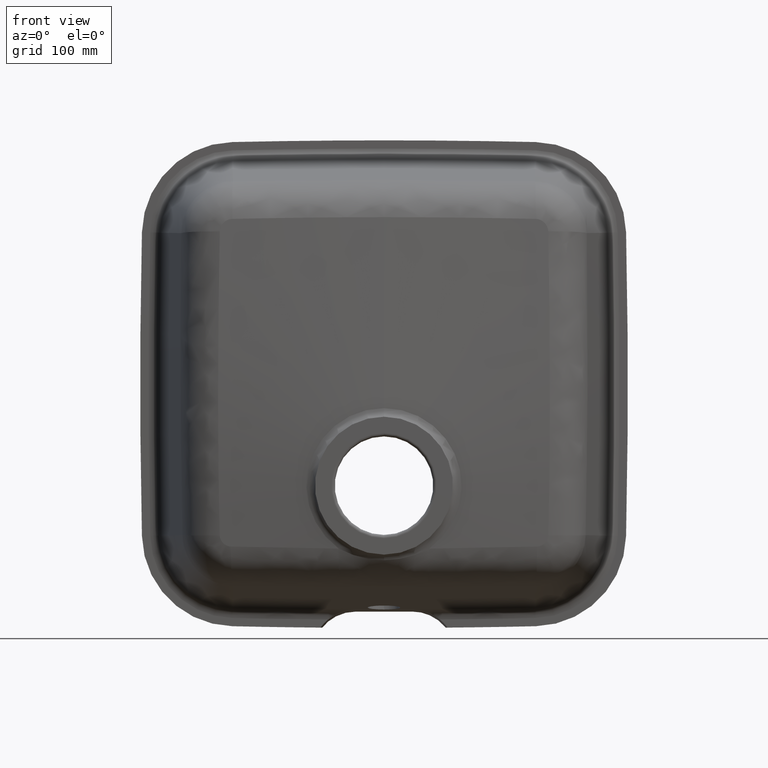
[diagram: clean part render]
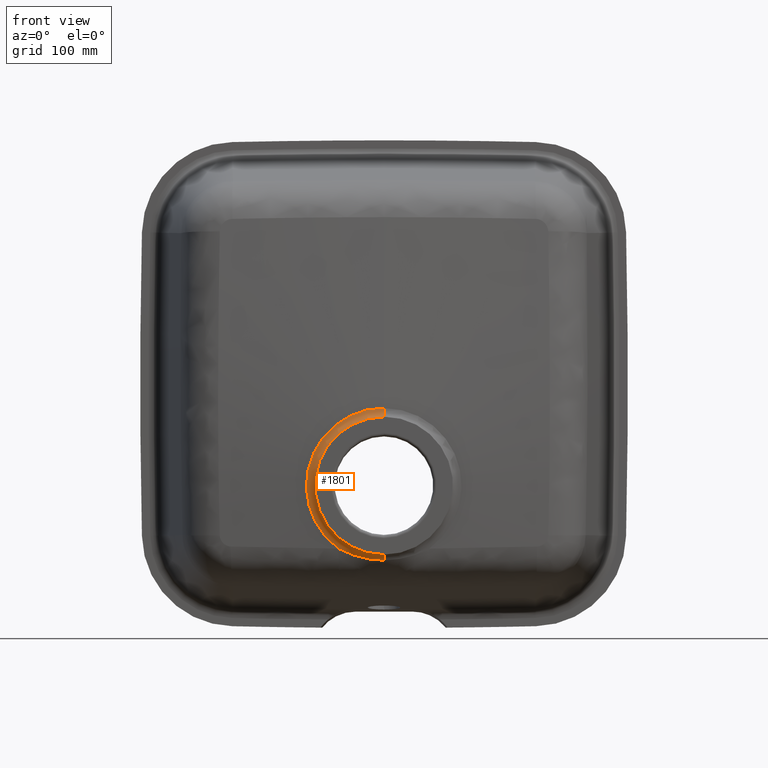
[diagram: same view with one face highlighted and labeled with its STEP entity id]
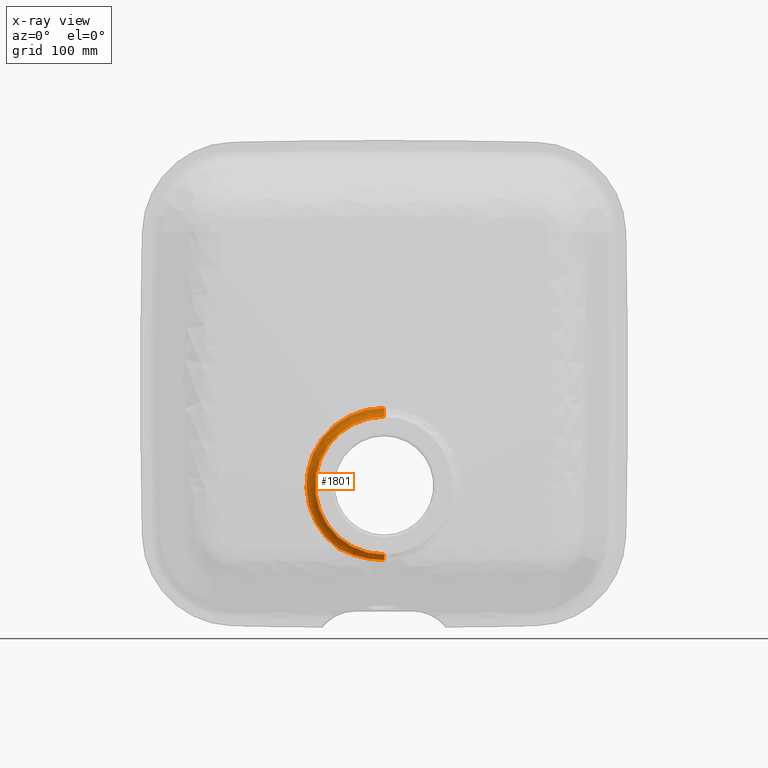
[diagram: x-ray of the same camera — body ghosted, the highlighted face saturated]
A machine part, front view. The second image highlights one B-rep face of the part: STEP entity #1801.
The next image is the same camera in x-ray: the body ghosted, the highlighted face saturated — about 0% of this face is hidden behind the body in this view.
In plain terms, the highlighted toroidal blend (fillet) surface has major radius 72.1949 mm and minor (blend) radius 10 mm.
Its self-contained STEP definition (entity closure, byte-faithful):
#242 = VERTEX_POINT ( 'NONE', #2177 ) ;
#373 = DIRECTION ( 'NONE',  ( 0.0000000000000000000, -1.000000000000000000, 0.0000000000000000000 ) ) ;
#397 = EDGE_CURVE ( 'NONE', #1255, #1001, #2399, .T. ) ;
#408 = AXIS2_PLACEMENT_3D ( 'NONE', #4267, #1127, #3942 ) ;
#409 = DIRECTION ( 'NONE',  ( 1.000000000000000000, 1.003202830703358500E-032, -1.224646799147353200E-016 ) ) ;
#445 = CARTESIAN_POINT ( 'NONE',  ( -17.92807757115122800, -13.42297643112885600, -160.2977753120702900 ) ) ;
#538 = EDGE_CURVE ( 'NONE', #931, #242, #3985, .T. ) ;
#554 = ORIENTED_EDGE ( 'NONE', *, *, #397, .F. ) ;
#569 = CARTESIAN_POINT ( 'NONE',  ( -22.33607860435565600, -13.34057188504914000, -159.1468828905394700 ) ) ;
#580 = CARTESIAN_POINT ( 'NONE',  ( -30.14692477296618700, -13.17647308743022300, -156.6495110399990300 ) ) ;
#664 = CARTESIAN_POINT ( 'NONE',  ( -14.37725837959678400, -13.47714877029668500, -160.9919917390947100 ) ) ;
#711 = DIRECTION ( 'NONE',  ( 0.0000000000000000000, -7.285517096742894800E-017, 1.000000000000000000 ) ) ;
#822 = CARTESIAN_POINT ( 'NONE',  ( -3.625808734211001000, -13.56993281707830500, -162.1580867556757800 ) ) ;
#931 = VERTEX_POINT ( 'NONE', #4354 ) ;
#1001 = VERTEX_POINT ( 'NONE', #3742 ) ;
#1058 = DIRECTION ( 'NONE',  ( 0.0000000000000000000, 0.0000000000000000000, 1.000000000000000000 ) ) ;
#1127 = DIRECTION ( 'NONE',  ( 0.0000000000000000000, -1.000000000000000000, -8.191772774009839300E-017 ) ) ;
#1170 = CARTESIAN_POINT ( 'NONE',  ( -3.923089231756081400E-015, -13.56993281707828400, -162.1580867556759000 ) ) ;
#1255 = VERTEX_POINT ( 'NONE', #1503 ) ;
#1503 = CARTESIAN_POINT ( 'NONE',  ( 0.0000000000000000000, -17.98681024870059300, -156.9984767683969600 ) ) ;
#1576 = EDGE_CURVE ( 'NONE', #931, #1255, #2675, .T. ) ;
#1635 = B_SPLINE_CURVE_WITH_KNOTS ( 'NONE', 3,
 ( #4043, #4055, #1989, #580, #2331, #3720, #3044, #4390, #569, #445, #664, #3116, #822, #1170 ),
 .UNSPECIFIED., .F., .F.,
 ( 4, 2, 2, 2, 2, 2, 4 ),
 ( 2.861452533702079400E-016, 0.01090742031676071800, 0.01636113047514094500, 0.01908798555433106500, 0.02181484063352118500, 0.03272226095028165500, 0.04362968126704212800 ),
 .UNSPECIFIED. ) ;
#1720 = EDGE_CURVE ( 'NONE', #2056, #1001, #1635, .T. ) ;
#1743 = DIRECTION ( 'NONE',  ( -0.0000000000000000000, 1.000000000000000000, 8.191772774009839300E-017 ) ) ;
#1801 = ADVANCED_FACE ( 'NONE', ( #3737 ), #2827, .F. ) ;
#1968 = DIRECTION ( 'NONE',  ( -1.000000000000000000, 0.0000000000000000000, -0.0000000000000000000 ) ) ;
#1989 = CARTESIAN_POINT ( 'NONE',  ( -35.22193541144752500, -13.06511606345029500, -154.6554290500016600 ) ) ;
#2014 = AXIS2_PLACEMENT_3D ( 'NONE', #3552, #409, #3571 ) ;
#2056 = VERTEX_POINT ( 'NONE', #3168 ) ;
#2177 = CARTESIAN_POINT ( 'NONE',  ( 8.747863153916120400E-015, -12.95274819764280800, -22.06827650219857900 ) ) ;
#2230 = ORIENTED_EDGE ( 'NONE', *, *, #2930, .F. ) ;
#2325 = CIRCLE ( 'NONE', #3071, 71.43172349780124400 ) ;
#2331 = CARTESIAN_POINT ( 'NONE',  ( -28.43613388270537000, -13.21450643580832800, -157.2664728708395800 ) ) ;
#2399 = CIRCLE ( 'NONE', #2714, 10.00000000000000900 ) ;
#2667 = CARTESIAN_POINT ( 'NONE',  ( 0.0000000000000000000, -22.92358149469209700, -165.6949294742277600 ) ) ;
#2675 = CIRCLE ( 'NONE', #4314, 63.49847676839704000 ) ;
#2714 = AXIS2_PLACEMENT_3D ( 'NONE', #2667, #1968, #3006 ) ;
#2827 = TOROIDAL_SURFACE ( 'NONE', #408, 72.19492947422782000, 10.00000000000000000 ) ;
#2852 = ORIENTED_EDGE ( 'NONE', *, *, #1720, .T. ) ;
#2917 = ORIENTED_EDGE ( 'NONE', *, *, #1576, .F. ) ;
#2930 = EDGE_CURVE ( 'NONE', #2056, #242, #2325, .T. ) ;
#3006 = DIRECTION ( 'NONE',  ( 0.0000000000000000000, 0.0000000000000000000, 1.000000000000000000 ) ) ;
#3044 = CARTESIAN_POINT ( 'NONE',  ( -24.96896651482999000, -13.28798485067577500, -158.3868357452059300 ) ) ;
#3071 = AXIS2_PLACEMENT_3D ( 'NONE', #4211, #1743, #711 ) ;
#3116 = CARTESIAN_POINT ( 'NONE',  ( -7.226113376990982200, -13.55054495119085800, -161.9220550886991200 ) ) ;
#3168 = CARTESIAN_POINT ( 'NONE',  ( -41.76892267967305400, -12.95274819764280000, -151.4469431466907800 ) ) ;
#3423 = ORIENTED_EDGE ( 'NONE', *, *, #538, .T. ) ;
#3552 = CARTESIAN_POINT ( 'NONE',  ( 8.841328929528198700E-015, -22.92358149469211200, -21.30507052577211600 ) ) ;
#3571 = DIRECTION ( 'NONE',  ( -1.224646799147353500E-016, 0.0000000000000000000, -1.000000000000000000 ) ) ;
#3720 = CARTESIAN_POINT ( 'NONE',  ( -25.83955683469640300, -13.26982290195121400, -158.1162080249610000 ) ) ;
#3737 = FACE_OUTER_BOUND ( 'NONE', #4249, .T. ) ;
#3742 = CARTESIAN_POINT ( 'NONE',  ( -3.923089231756081400E-015, -13.56993281707828400, -162.1580867556759000 ) ) ;
#3942 = DIRECTION ( 'NONE',  ( 0.0000000000000000000, 8.191772774009839300E-017, -1.000000000000000000 ) ) ;
#3985 = CIRCLE ( 'NONE', #2014, 10.00000000000000200 ) ;
#4043 = CARTESIAN_POINT ( 'NONE',  ( -41.76892267967305400, -12.95274819764280000, -151.4469431466907800 ) ) ;
#4055 = CARTESIAN_POINT ( 'NONE',  ( -38.52860243309321200, -12.99297856492106900, -153.1347143247734000 ) ) ;
#4211 = CARTESIAN_POINT ( 'NONE',  ( 0.0000000000000000000, -12.95274819764280500, -93.49999999999992900 ) ) ;
#4242 = CARTESIAN_POINT ( 'NONE',  ( 0.0000000000000000000, -17.98681024870059300, -93.49999999999992900 ) ) ;
#4249 = EDGE_LOOP ( 'NONE', ( #2917, #3423, #2230, #2852, #554 ) ) ;
#4267 = CARTESIAN_POINT ( 'NONE',  ( 0.0000000000000000000, -22.92358149469210500, -93.49999999999992900 ) ) ;
#4314 = AXIS2_PLACEMENT_3D ( 'NONE', #4242, #373, #1058 ) ;
#4354 = CARTESIAN_POINT ( 'NONE',  ( 8.262091893215559300E-015, -17.98681024870059300, -30.00152323160289200 ) ) ;
#4390 = CARTESIAN_POINT ( 'NONE',  ( -23.21736960212980300, -13.32335770601876300, -158.9021605364186200 ) ) ;